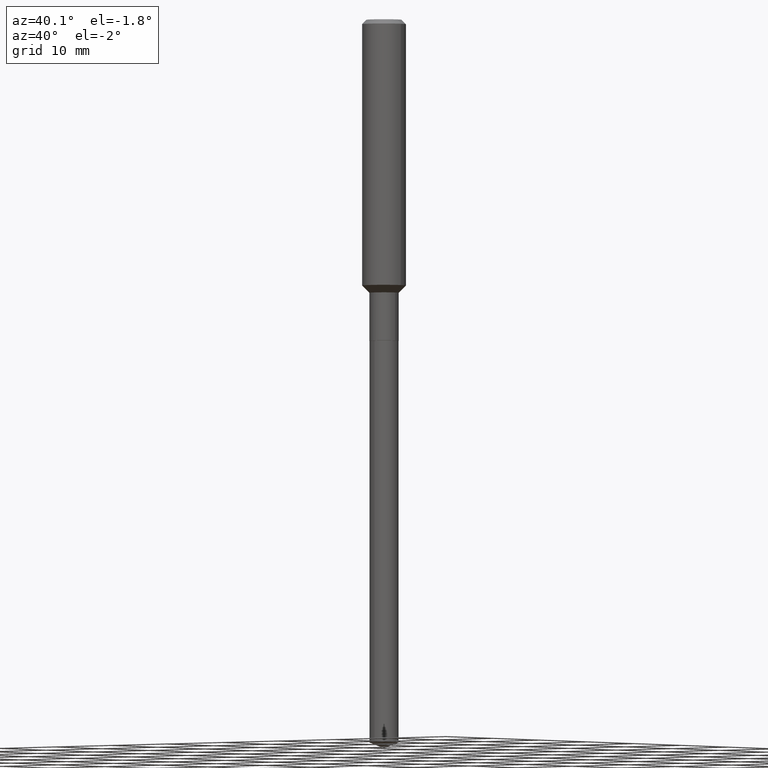
[diagram: clean part render]
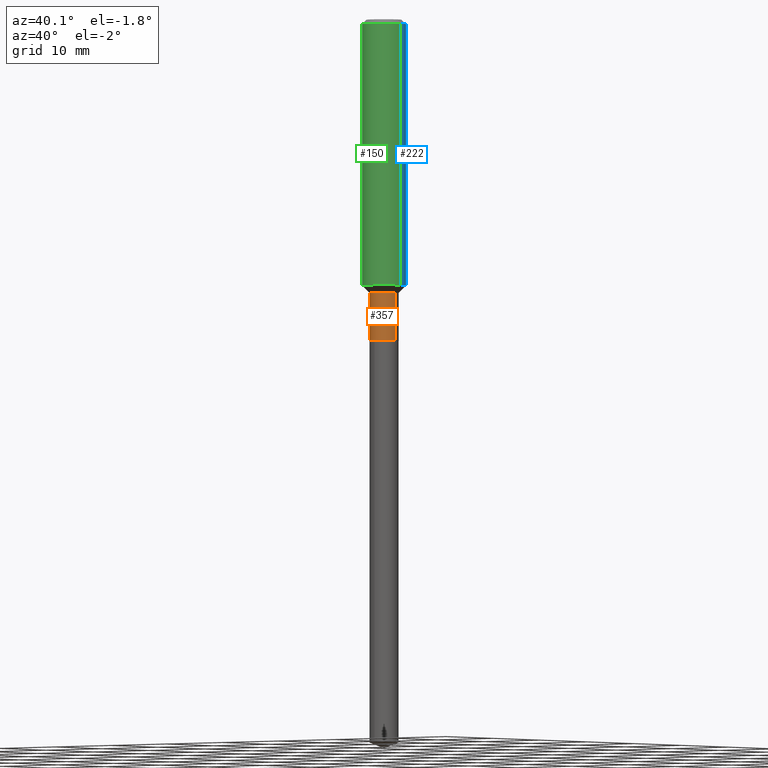
[diagram: same view with three faces highlighted in distinct colors, each labeled with its STEP entity id]
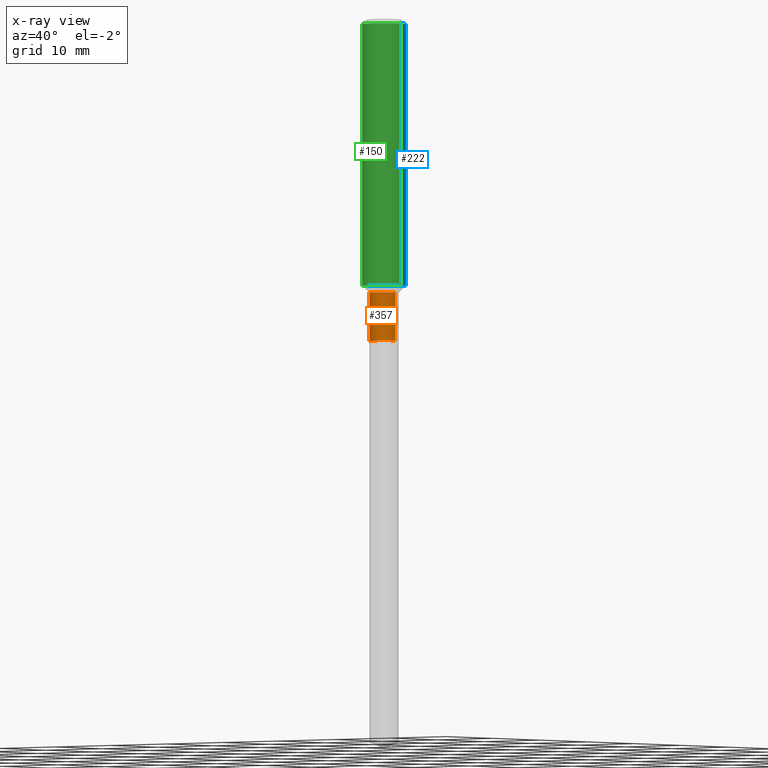
[diagram: x-ray of the same camera — body ghosted, the three highlighted faces saturated]
A machine part, auxiliary view with three faces highlighted in distinct colors.
The next image is the same camera in x-ray (body ghosted, the three faces saturated) — at least one of them is partly hidden behind the body in this view.
Their STEP definitions:

[orange] entity #357 — the highlighted cylindrical surface (edge-blend (fillet) strip) has radius 2.0002 mm, axis along (-0, 0, 1).
#19 = CARTESIAN_POINT ( 'NONE',  ( -0.07874999999999995892, -5.033975274482582847E-15, -1.472400000000000153 ) ) ;
#25 = AXIS2_PLACEMENT_3D ( 'NONE', #475, #143, #436 ) ;
#55 = EDGE_CURVE ( 'NONE', #128, #56, #140, .T. ) ;
#56 = VERTEX_POINT ( 'NONE', #259 ) ;
#99 = DIRECTION ( 'NONE',  ( 1.000000000000000000, -6.982962677686261977E-15, 0.000000000000000000 ) ) ;
#109 = CARTESIAN_POINT ( 'NONE',  ( 3.600708270226995482E-29, -5.140857123312647235E-15, -1.472400000000000153 ) ) ;
#118 = CARTESIAN_POINT ( 'NONE',  ( 4.234818331670801367E-29, -6.046198234474675274E-15, -1.731700000000000017 ) ) ;
#128 = VERTEX_POINT ( 'NONE', #405 ) ;
#134 = EDGE_CURVE ( 'NONE', #490, #128, #325, .T. ) ;
#138 = ORIENTED_EDGE ( 'NONE', *, *, #55, .T. ) ;
#140 = LINE ( 'NONE', #447, #395 ) ;
#141 = CIRCLE ( 'NONE', #292, 0.07874999999999995892 ) ;
#143 = DIRECTION ( 'NONE',  ( -2.445468806185136597E-29, 3.491481338843145583E-15, 1.000000000000000000 ) ) ;
#202 = CARTESIAN_POINT ( 'NONE',  ( -0.07874999999999997280, 5.595524044110787031E-16, -3.873661383575737091E-30 ) ) ;
#205 = EDGE_LOOP ( 'NONE', ( #352, #305, #138, #232 ) ) ;
#207 = VERTEX_POINT ( 'NONE', #19 ) ;
#231 = VECTOR ( 'NONE', #349, 39.37007874015748143 ) ;
#232 = ORIENTED_EDGE ( 'NONE', *, *, #263, .F. ) ;
#257 = DIRECTION ( 'NONE',  ( -2.445468806185136597E-29, 3.491481338843145583E-15, 1.000000000000000000 ) ) ;
#259 = CARTESIAN_POINT ( 'NONE',  ( 0.07874999999999995892, -5.690765434180440581E-15, -1.472400000000000153 ) ) ;
#262 = DIRECTION ( 'NONE',  ( -2.445468806185136597E-29, 3.491481338843145583E-15, 1.000000000000000000 ) ) ;
#263 = EDGE_CURVE ( 'NONE', #207, #56, #141, .T. ) ;
#280 = AXIS2_PLACEMENT_3D ( 'NONE', #118, #257, #99 ) ;
#292 = AXIS2_PLACEMENT_3D ( 'NONE', #109, #262, #408 ) ;
#305 = ORIENTED_EDGE ( 'NONE', *, *, #134, .T. ) ;
#317 = CARTESIAN_POINT ( 'NONE',  ( -0.07875000000000000056, -5.033975274482582847E-15, -1.731700000000000017 ) ) ;
#325 = CIRCLE ( 'NONE', #280, 0.07875000000000000056 ) ;
#329 = CYLINDRICAL_SURFACE ( 'NONE', #25, 0.07874999999999997280 ) ;
#336 = DIRECTION ( 'NONE',  ( -2.445468806185136877E-29, 3.491481338843145188E-15, 1.000000000000000000 ) ) ;
#349 = DIRECTION ( 'NONE',  ( -2.445468806185136877E-29, 3.491481338843145188E-15, 1.000000000000000000 ) ) ;
#352 = ORIENTED_EDGE ( 'NONE', *, *, #442, .F. ) ;
#357 = ADVANCED_FACE ( 'NONE', ( #365 ), #329, .T. ) ;
#365 = FACE_OUTER_BOUND ( 'NONE', #205, .T. ) ;
#395 = VECTOR ( 'NONE', #336, 39.37007874015748143 ) ;
#405 = CARTESIAN_POINT ( 'NONE',  ( 0.07875000000000000056, -6.596106545342468619E-15, -1.731700000000000017 ) ) ;
#408 = DIRECTION ( 'NONE',  ( 1.000000000000000000, -6.982962677686265922E-15, 0.000000000000000000 ) ) ;
#421 = LINE ( 'NONE', #202, #231 ) ;
#436 = DIRECTION ( 'NONE',  ( 1.000000000000000000, -6.982962677686267499E-15, 4.876176775795935793E-29 ) ) ;
#442 = EDGE_CURVE ( 'NONE', #490, #207, #421, .T. ) ;
#447 = CARTESIAN_POINT ( 'NONE',  ( 0.07874999999999997280, -5.499083108677933457E-16, 3.839989210939298316E-30 ) ) ;
#475 = CARTESIAN_POINT ( 'NONE',  ( 0.000000000000000000, 0.000000000000000000, 0.000000000000000000 ) ) ;
#490 = VERTEX_POINT ( 'NONE', #317 ) ;

[blue] entity #222 — the highlighted cylindrical surface (edge-blend (fillet) strip) has radius 2.9997 mm, axis along (-0, 0, 1).
#6 = EDGE_CURVE ( 'NONE', #18, #170, #411, .T. ) ;
#18 = VERTEX_POINT ( 'NONE', #194 ) ;
#66 = CARTESIAN_POINT ( 'NONE',  ( 0.1181000000000001632, -5.828155224863919617E-15, -1.433050000000000157 ) ) ;
#70 = EDGE_CURVE ( 'NONE', #355, #371, #237, .T. ) ;
#90 = CARTESIAN_POINT ( 'NONE',  ( -0.1181000000000001632, -4.164316361696490002E-15, -1.433050000000000157 ) ) ;
#111 = DIRECTION ( 'NONE',  ( 1.000000000000000000, -6.982962677686270655E-15, 0.000000000000000000 ) ) ;
#120 = CARTESIAN_POINT ( 'NONE',  ( -0.1181000000000000799, 8.391509709326788873E-16, -5.809262341591047988E-30 ) ) ;
#164 = LINE ( 'NONE', #120, #437 ) ;
#170 = VERTEX_POINT ( 'NONE', #452 ) ;
#184 = AXIS2_PLACEMENT_3D ( 'NONE', #189, #333, #293 ) ;
#189 = CARTESIAN_POINT ( 'NONE',  ( 0.000000000000000000, 0.000000000000000000, 0.000000000000000000 ) ) ;
#194 = CARTESIAN_POINT ( 'NONE',  ( 0.1180999999999999966, -9.071566814582237199E-16, -0.02362000000000014435 ) ) ;
#201 = CARTESIAN_POINT ( 'NONE',  ( 5.776197320209328408E-31, -8.246878922347560526E-17, -0.02362000000000014435 ) ) ;
#204 = VECTOR ( 'NONE', #291, 39.37007874015748143 ) ;
#210 = DIRECTION ( 'NONE',  ( 1.000000000000000000, -6.982962677686266711E-15, 0.000000000000000000 ) ) ;
#219 = FACE_OUTER_BOUND ( 'NONE', #392, .T. ) ;
#222 = ADVANCED_FACE ( 'NONE', ( #219 ), #369, .T. ) ;
#237 = CIRCLE ( 'NONE', #245, 0.1181000000000001632 ) ;
#241 = DIRECTION ( 'NONE',  ( -2.445468806185136597E-29, 3.491481338843145583E-15, 1.000000000000000000 ) ) ;
#245 = AXIS2_PLACEMENT_3D ( 'NONE', #264, #294, #111 ) ;
#264 = CARTESIAN_POINT ( 'NONE',  ( 3.504479072703610279E-29, -5.003467332629170566E-15, -1.433050000000000157 ) ) ;
#269 = ORIENTED_EDGE ( 'NONE', *, *, #70, .T. ) ;
#273 = DIRECTION ( 'NONE',  ( -2.445468806185136877E-29, 3.491481338843145188E-15, 1.000000000000000000 ) ) ;
#288 = EDGE_CURVE ( 'NONE', #355, #18, #295, .T. ) ;
#291 = DIRECTION ( 'NONE',  ( -2.445468806185136877E-29, 3.491481338843145188E-15, 1.000000000000000000 ) ) ;
#293 = DIRECTION ( 'NONE',  ( 1.000000000000000000, -6.982962677686266711E-15, 4.876176775795936353E-29 ) ) ;
#294 = DIRECTION ( 'NONE',  ( -2.445468806185136597E-29, 3.491481338843145583E-15, 1.000000000000000000 ) ) ;
#295 = LINE ( 'NONE', #373, #204 ) ;
#332 = AXIS2_PLACEMENT_3D ( 'NONE', #201, #241, #210 ) ;
#333 = DIRECTION ( 'NONE',  ( -2.445468806185136597E-29, 3.491481338843145583E-15, 1.000000000000000000 ) ) ;
#351 = ORIENTED_EDGE ( 'NONE', *, *, #288, .F. ) ;
#355 = VERTEX_POINT ( 'NONE', #66 ) ;
#369 = CYLINDRICAL_SURFACE ( 'NONE', #184, 0.1181000000000000799 ) ;
#371 = VERTEX_POINT ( 'NONE', #90 ) ;
#373 = CARTESIAN_POINT ( 'NONE',  ( 0.1181000000000000799, -8.246878922347486570E-16, 5.758764772215004644E-30 ) ) ;
#386 = ORIENTED_EDGE ( 'NONE', *, *, #425, .T. ) ;
#392 = EDGE_LOOP ( 'NONE', ( #269, #386, #432, #351 ) ) ;
#411 = CIRCLE ( 'NONE', #332, 0.1180999999999999966 ) ;
#425 = EDGE_CURVE ( 'NONE', #371, #170, #164, .T. ) ;
#432 = ORIENTED_EDGE ( 'NONE', *, *, #6, .F. ) ;
#437 = VECTOR ( 'NONE', #273, 39.37007874015748143 ) ;
#452 = CARTESIAN_POINT ( 'NONE',  ( -0.1180999999999999966, -1.703817089993643631E-15, -0.02362000000000014435 ) ) ;

[green] entity #150 — the highlighted cylindrical surface (edge-blend (fillet) strip) has radius 2.9997 mm, axis along (-0, 0, 1).
#18 = VERTEX_POINT ( 'NONE', #194 ) ;
#50 = AXIS2_PLACEMENT_3D ( 'NONE', #225, #398, #74 ) ;
#65 = CIRCLE ( 'NONE', #50, 0.1181000000000001632 ) ;
#66 = CARTESIAN_POINT ( 'NONE',  ( 0.1181000000000001632, -5.828155224863919617E-15, -1.433050000000000157 ) ) ;
#67 = CIRCLE ( 'NONE', #478, 0.1180999999999999966 ) ;
#71 = DIRECTION ( 'NONE',  ( 1.000000000000000000, -6.982962677686266711E-15, 4.876176775795936353E-29 ) ) ;
#73 = CARTESIAN_POINT ( 'NONE',  ( 5.776197320209328408E-31, -8.246878922347560526E-17, -0.02362000000000014435 ) ) ;
#74 = DIRECTION ( 'NONE',  ( 1.000000000000000000, -6.982962677686270655E-15, 0.000000000000000000 ) ) ;
#90 = CARTESIAN_POINT ( 'NONE',  ( -0.1181000000000001632, -4.164316361696490002E-15, -1.433050000000000157 ) ) ;
#120 = CARTESIAN_POINT ( 'NONE',  ( -0.1181000000000000799, 8.391509709326788873E-16, -5.809262341591047988E-30 ) ) ;
#150 = ADVANCED_FACE ( 'NONE', ( #407 ), #217, .T. ) ;
#152 = DIRECTION ( 'NONE',  ( 1.000000000000000000, -6.982962677686266711E-15, 0.000000000000000000 ) ) ;
#153 = EDGE_CURVE ( 'NONE', #371, #355, #65, .T. ) ;
#161 = ORIENTED_EDGE ( 'NONE', *, *, #279, .F. ) ;
#164 = LINE ( 'NONE', #120, #437 ) ;
#170 = VERTEX_POINT ( 'NONE', #452 ) ;
#194 = CARTESIAN_POINT ( 'NONE',  ( 0.1180999999999999966, -9.071566814582237199E-16, -0.02362000000000014435 ) ) ;
#204 = VECTOR ( 'NONE', #291, 39.37007874015748143 ) ;
#217 = CYLINDRICAL_SURFACE ( 'NONE', #340, 0.1181000000000000799 ) ;
#225 = CARTESIAN_POINT ( 'NONE',  ( 3.504479072703610279E-29, -5.003467332629170566E-15, -1.433050000000000157 ) ) ;
#230 = ORIENTED_EDGE ( 'NONE', *, *, #153, .T. ) ;
#247 = CARTESIAN_POINT ( 'NONE',  ( 0.000000000000000000, 0.000000000000000000, 0.000000000000000000 ) ) ;
#253 = DIRECTION ( 'NONE',  ( -2.445468806185136597E-29, 3.491481338843145583E-15, 1.000000000000000000 ) ) ;
#273 = DIRECTION ( 'NONE',  ( -2.445468806185136877E-29, 3.491481338843145188E-15, 1.000000000000000000 ) ) ;
#279 = EDGE_CURVE ( 'NONE', #170, #18, #67, .T. ) ;
#288 = EDGE_CURVE ( 'NONE', #355, #18, #295, .T. ) ;
#291 = DIRECTION ( 'NONE',  ( -2.445468806185136877E-29, 3.491481338843145188E-15, 1.000000000000000000 ) ) ;
#295 = LINE ( 'NONE', #373, #204 ) ;
#300 = ORIENTED_EDGE ( 'NONE', *, *, #288, .T. ) ;
#340 = AXIS2_PLACEMENT_3D ( 'NONE', #247, #477, #71 ) ;
#348 = EDGE_LOOP ( 'NONE', ( #484, #230, #300, #161 ) ) ;
#355 = VERTEX_POINT ( 'NONE', #66 ) ;
#371 = VERTEX_POINT ( 'NONE', #90 ) ;
#373 = CARTESIAN_POINT ( 'NONE',  ( 0.1181000000000000799, -8.246878922347486570E-16, 5.758764772215004644E-30 ) ) ;
#398 = DIRECTION ( 'NONE',  ( -2.445468806185136597E-29, 3.491481338843145583E-15, 1.000000000000000000 ) ) ;
#407 = FACE_OUTER_BOUND ( 'NONE', #348, .T. ) ;
#425 = EDGE_CURVE ( 'NONE', #371, #170, #164, .T. ) ;
#437 = VECTOR ( 'NONE', #273, 39.37007874015748143 ) ;
#452 = CARTESIAN_POINT ( 'NONE',  ( -0.1180999999999999966, -1.703817089993643631E-15, -0.02362000000000014435 ) ) ;
#477 = DIRECTION ( 'NONE',  ( -2.445468806185136597E-29, 3.491481338843145583E-15, 1.000000000000000000 ) ) ;
#478 = AXIS2_PLACEMENT_3D ( 'NONE', #73, #253, #152 ) ;
#484 = ORIENTED_EDGE ( 'NONE', *, *, #425, .F. ) ;